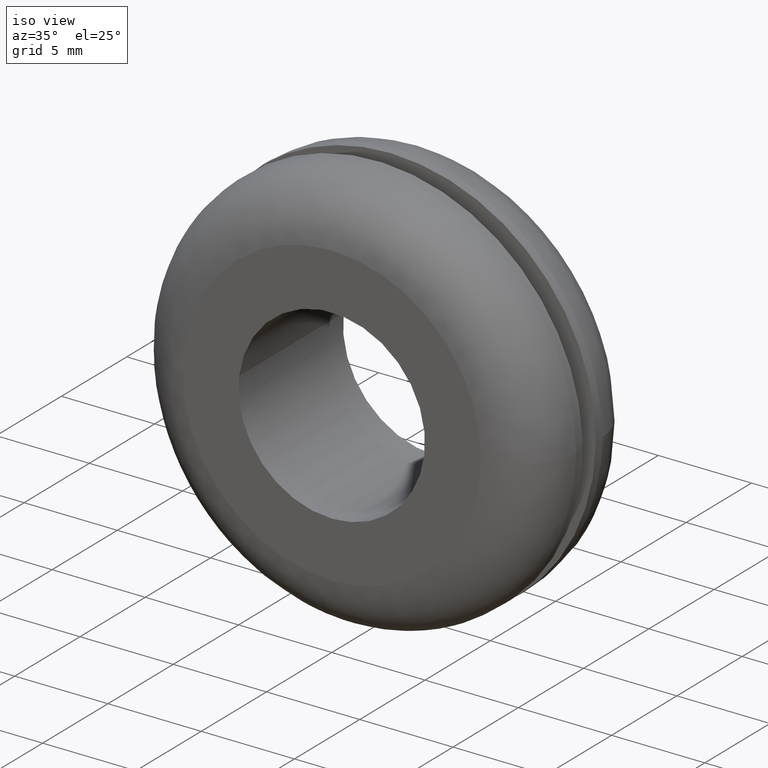
[diagram: clean part render]
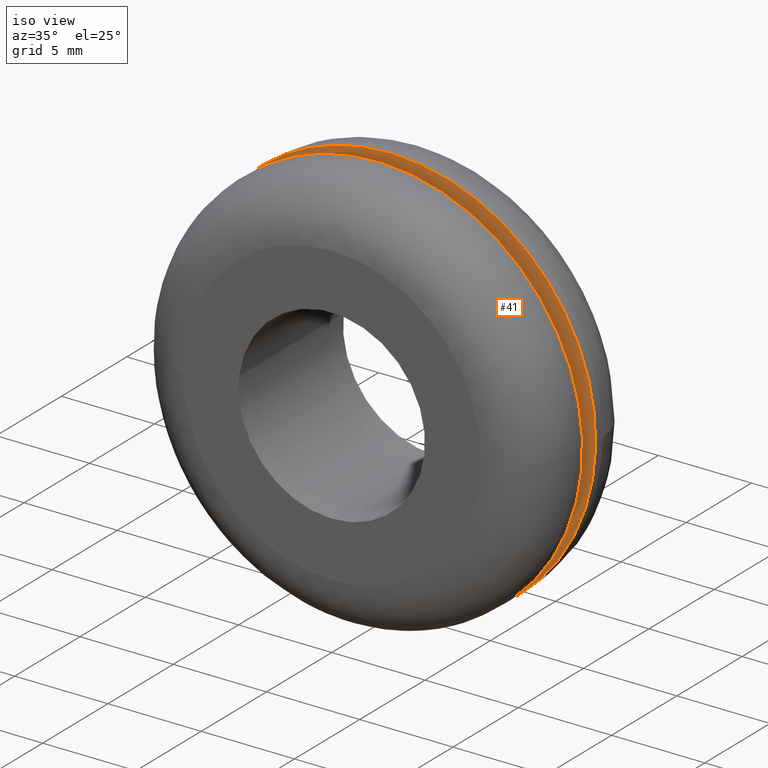
[diagram: same view with one face highlighted and labeled with its STEP entity id]
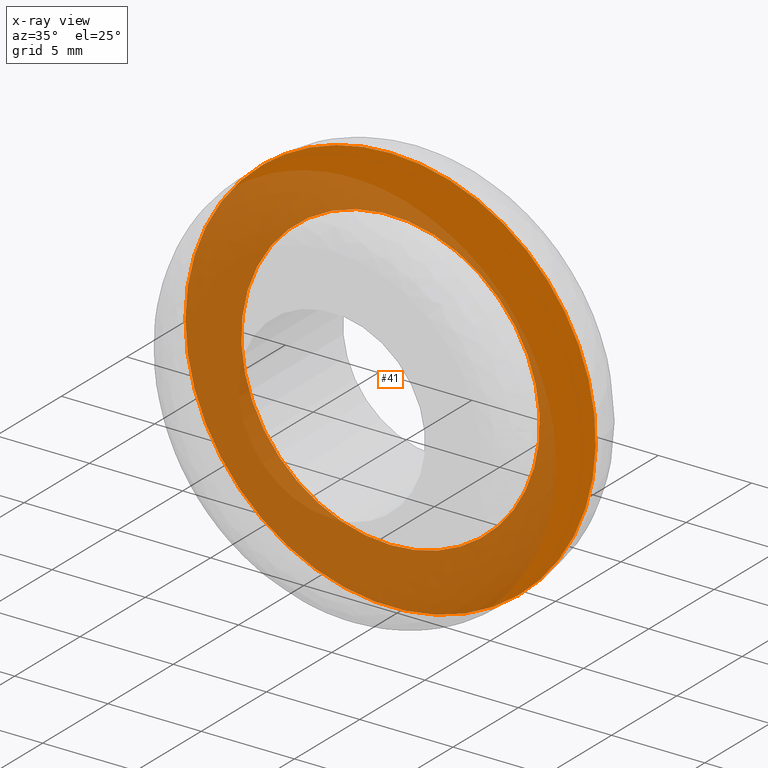
[diagram: x-ray of the same camera — body ghosted, the highlighted face saturated]
A machine part, iso view. The second image highlights one B-rep face of the part: STEP entity #41.
The next image is the same camera in x-ray: the body ghosted, the highlighted face saturated — about 66% of this face is hidden behind the body in this view.
In plain terms, the highlighted planar face has unit normal (0, 1, 0).
Its self-contained STEP definition (entity closure, byte-faithful):
#41=ADVANCED_FACE('',(#68,#69),#67,.F.);
#67=PLANE('',#229);
#68=FACE_OUTER_BOUND('',#230,.T.);
#69=FACE_BOUND('',#231,.T.);
#226=CARTESIAN_POINT('',(-2.28630706599E+001,4.50000000000E+000,-2.53000000000E+001));
#227=DIRECTION('',(0.00000000000E+000,1.00000000000E+000,0.00000000000E+000));
#228=DIRECTION('',(0.00000000000E+000,0.00000000000E+000,1.00000000000E+000));
#229=AXIS2_PLACEMENT_3D('',#226,#227,#228);
#230=EDGE_LOOP('',(#394,#395,#396));
#231=EDGE_LOOP('',(#397,#398,#399));
#394=ORIENTED_EDGE('',*,*,#496,.T.);
#395=ORIENTED_EDGE('',*,*,#497,.T.);
#396=ORIENTED_EDGE('',*,*,#498,.T.);
#397=ORIENTED_EDGE('',*,*,#499,.F.);
#398=ORIENTED_EDGE('',*,*,#500,.F.);
#399=ORIENTED_EDGE('',*,*,#501,.F.);
#496=EDGE_CURVE('',#583,#584,#585,.T.);
#497=EDGE_CURVE('',#584,#591,#592,.T.);
#498=EDGE_CURVE('',#591,#583,#598,.T.);
#499=EDGE_CURVE('',#604,#605,#606,.T.);
#500=EDGE_CURVE('',#612,#604,#613,.T.);
#501=EDGE_CURVE('',#605,#612,#619,.T.);
#583=VERTEX_POINT('',#916);
#584=VERTEX_POINT('',#917);
#585=CIRCLE('',#921,1.10000000000E+001);
#591=VERTEX_POINT('',#922);
#592=CIRCLE('',#926,1.10000000000E+001);
#598=CIRCLE('',#930,1.10000000000E+001);
#604=VERTEX_POINT('',#931);
#605=VERTEX_POINT('',#932);
#606=CIRCLE('',#936,8.00000000000E+000);
#612=VERTEX_POINT('',#937);
#613=CIRCLE('',#941,8.00000000000E+000);
#619=CIRCLE('',#945,8.00000000000E+000);
#916=CARTESIAN_POINT('',(4.58888569507E-016,4.50000000000E+000,1.10000000000E+001));
#917=CARTESIAN_POINT('',(-6.84952014886E+000,4.50000000000E+000,8.60721056617E+000));
#918=CARTESIAN_POINT('',(9.23705556488E-014,4.50000000000E+000,-1.40776279522E-013));
#919=DIRECTION('',(0.00000000000E+000,-1.00000000000E+000,-0.00000000000E+000));
#920=DIRECTION('',(-8.47806673350E-015,-0.00000000000E+000,1.00000000000E+000));
#921=AXIS2_PLACEMENT_3D('',#918,#919,#920);
#922=CARTESIAN_POINT('',(6.84766100267E+000,4.50000000000E+000,-8.60868972565E+000));
#923=CARTESIAN_POINT('',(9.23705556488E-014,4.50000000000E+000,-1.40776279522E-013));
#924=DIRECTION('',(0.00000000000E+000,-1.00000000000E+000,-0.00000000000E+000));
#925=DIRECTION('',(-8.47806673350E-015,-0.00000000000E+000,1.00000000000E+000));
#926=AXIS2_PLACEMENT_3D('',#923,#924,#925);
#927=CARTESIAN_POINT('',(9.23705556488E-014,4.50000000000E+000,-1.40776279522E-013));
#928=DIRECTION('',(0.00000000000E+000,-1.00000000000E+000,-0.00000000000E+000));
#929=DIRECTION('',(-8.47806673350E-015,-0.00000000000E+000,1.00000000000E+000));
#930=AXIS2_PLACEMENT_3D('',#927,#928,#929);
#931=CARTESIAN_POINT('',(-7.94407622006E+000,4.50000000000E+000,9.44273800291E-001));
#932=CARTESIAN_POINT('',(-1.55431223448E-015,4.50000000000E+000,-8.00000000000E+000));
#933=CARTESIAN_POINT('',(7.49622586227E-013,4.50000000000E+000,1.64623870091E-012));
#934=DIRECTION('',(-6.02302498344E-017,-1.00000000000E+000,-5.06712981367E-016));
#935=DIRECTION('',(-9.35640454003E-014,5.06712981367E-016,-1.00000000000E+000));
#936=AXIS2_PLACEMENT_3D('',#933,#934,#935);
#937=CARTESIAN_POINT('',(7.94391288835E+000,4.50000000000E+000,-9.45646880360E-001));
#938=CARTESIAN_POINT('',(7.49622586227E-013,4.50000000000E+000,1.64623870091E-012));
#939=DIRECTION('',(-6.02302498344E-017,-1.00000000000E+000,-5.06712981367E-016));
#940=DIRECTION('',(-9.35640454003E-014,5.06712981367E-016,-1.00000000000E+000));
#941=AXIS2_PLACEMENT_3D('',#938,#939,#940);
#942=CARTESIAN_POINT('',(7.49622586227E-013,4.50000000000E+000,1.64623870091E-012));
#943=DIRECTION('',(-6.02302498344E-017,-1.00000000000E+000,-5.06712981367E-016));
#944=DIRECTION('',(-9.35640454003E-014,5.06712981367E-016,-1.00000000000E+000));
#945=AXIS2_PLACEMENT_3D('',#942,#943,#944);